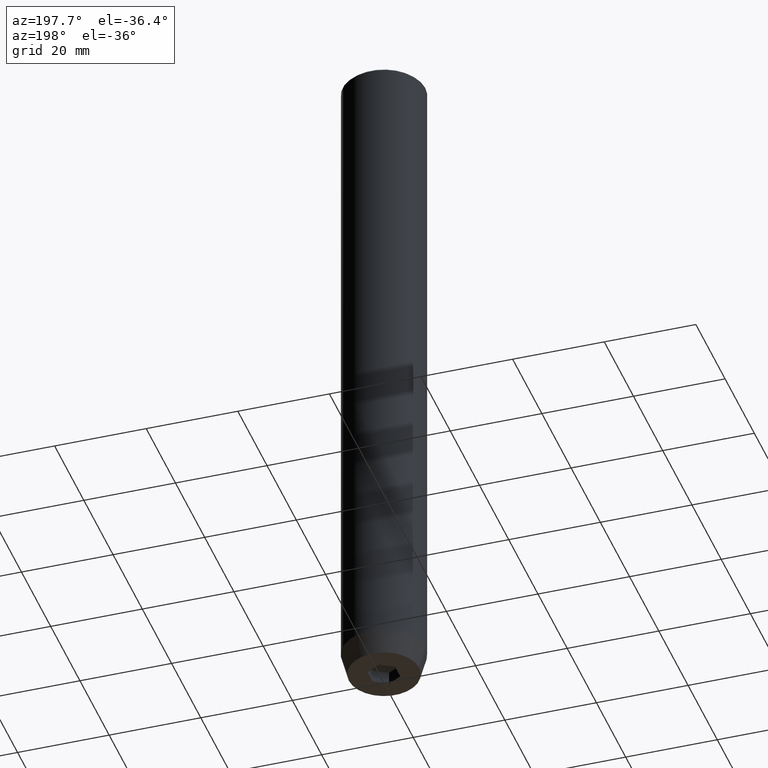
[diagram: clean part render]
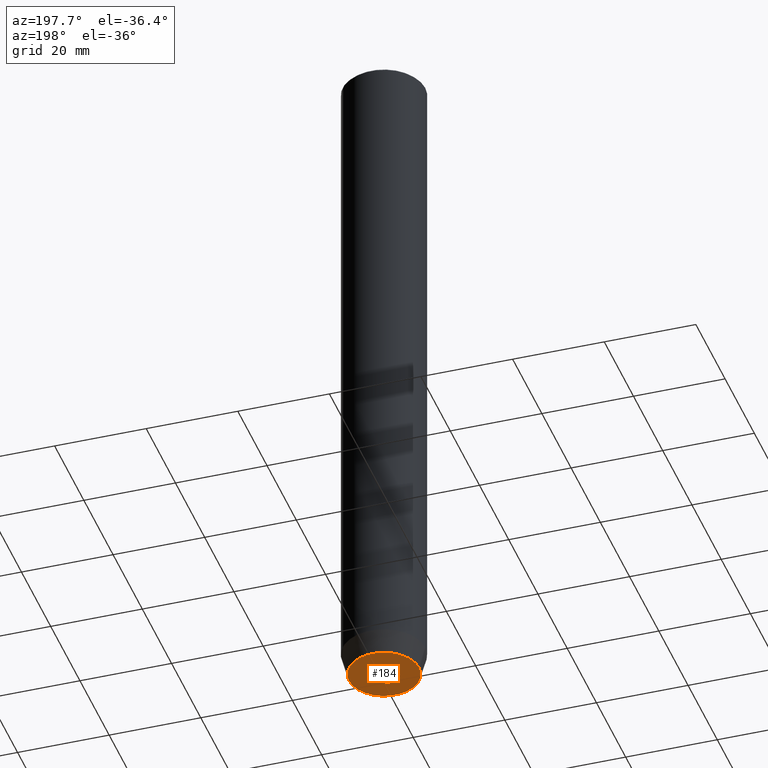
[diagram: same view with one face highlighted and labeled with its STEP entity id]
A machine part, auxiliary view. The second image highlights one B-rep face of the part: STEP entity #184.
In plain terms, the highlighted planar face has unit normal (0, 0, -1).
Its self-contained STEP definition (entity closure, byte-faithful):
#3 = CARTESIAN_POINT ( 'NONE',  ( 3.000000000000000000, 1.732050807568876527, -150.0000000000000000 ) ) ;
#7 = LINE ( 'NONE', #145, #283 ) ;
#10 = LINE ( 'NONE', #233, #101 ) ;
#11 = EDGE_CURVE ( 'NONE', #84, #215, #270, .T. ) ;
#12 = VECTOR ( 'NONE', #71, 1000.000000000000000 ) ;
#13 = PLANE ( 'NONE',  #350 ) ;
#23 = CARTESIAN_POINT ( 'NONE',  ( -3.000000000000000444, -7.511572993685800087E-16, -150.0000000000000000 ) ) ;
#29 = ORIENTED_EDGE ( 'NONE', *, *, #356, .F. ) ;
#33 = AXIS2_PLACEMENT_3D ( 'NONE', #143, #324, #390 ) ;
#36 = ORIENTED_EDGE ( 'NONE', *, *, #191, .F. ) ;
#39 = EDGE_CURVE ( 'NONE', #311, #394, #10, .T. ) ;
#40 = DIRECTION ( 'NONE',  ( -0.000000000000000000, -0.000000000000000000, 1.000000000000000000 ) ) ;
#46 = CARTESIAN_POINT ( 'NONE',  ( 0.000000000000000000, 0.000000000000000000, -150.0000000000000000 ) ) ;
#50 = VECTOR ( 'NONE', #386, 1000.000000000000000 ) ;
#71 = DIRECTION ( 'NONE',  ( -0.8660254037844385966, -0.5000000000000001110, 0.000000000000000000 ) ) ;
#81 = DIRECTION ( 'NONE',  ( -0.8660254037844385966, 0.5000000000000001110, 0.000000000000000000 ) ) ;
#84 = VERTEX_POINT ( 'NONE', #407 ) ;
#97 = FACE_OUTER_BOUND ( 'NONE', #170, .T. ) ;
#99 = CARTESIAN_POINT ( 'NONE',  ( -3.000000000000000888, 1.732050807568876527, -150.0000000000000000 ) ) ;
#101 = VECTOR ( 'NONE', #142, 1000.000000000000000 ) ;
#113 = CIRCLE ( 'NONE', #366, 7.660254037844373087 ) ;
#119 = CARTESIAN_POINT ( 'NONE',  ( -7.660254037844373087, 1.020146339021393680E-15, -150.0000000000000000 ) ) ;
#142 = DIRECTION ( 'NONE',  ( 0.8660254037844385966, -0.5000000000000001110, 0.000000000000000000 ) ) ;
#143 = CARTESIAN_POINT ( 'NONE',  ( 0.000000000000000000, 0.000000000000000000, -150.0000000000000000 ) ) ;
#145 = CARTESIAN_POINT ( 'NONE',  ( 3.000000000000000000, 0.000000000000000000, -150.0000000000000000 ) ) ;
#151 = CARTESIAN_POINT ( 'NONE',  ( 7.660254037844373087, 0.000000000000000000, -150.0000000000000000 ) ) ;
#165 = CARTESIAN_POINT ( 'NONE',  ( 3.000000000000000000, -1.732050807568876527, -150.0000000000000000 ) ) ;
#170 = EDGE_LOOP ( 'NONE', ( #562, #36 ) ) ;
#171 = CIRCLE ( 'NONE', #33, 7.660254037844373087 ) ;
#184 = ADVANCED_FACE ( 'NONE', ( #503, #97 ), #13, .T. ) ;
#191 = EDGE_CURVE ( 'NONE', #252, #294, #171, .T. ) ;
#192 = CARTESIAN_POINT ( 'NONE',  ( 0.000000000000000000, 7.660254037844373087, -150.0000000000000000 ) ) ;
#212 = EDGE_LOOP ( 'NONE', ( #29, #576, #290, #521, #541, #225 ) ) ;
#215 = VERTEX_POINT ( 'NONE', #527 ) ;
#225 = ORIENTED_EDGE ( 'NONE', *, *, #39, .F. ) ;
#226 = DIRECTION ( 'NONE',  ( 1.000000000000000000, 0.000000000000000000, 0.000000000000000000 ) ) ;
#233 = CARTESIAN_POINT ( 'NONE',  ( 1.500000000000000222, 2.598076211353315568, -150.0000000000000000 ) ) ;
#245 = EDGE_CURVE ( 'NONE', #361, #84, #515, .T. ) ;
#252 = VERTEX_POINT ( 'NONE', #119 ) ;
#265 = EDGE_CURVE ( 'NONE', #215, #579, #574, .T. ) ;
#270 = LINE ( 'NONE', #484, #480 ) ;
#274 = DIRECTION ( 'NONE',  ( 0.000000000000000000, -1.000000000000000000, 0.000000000000000000 ) ) ;
#283 = VECTOR ( 'NONE', #274, 1000.000000000000000 ) ;
#290 = ORIENTED_EDGE ( 'NONE', *, *, #11, .F. ) ;
#293 = CARTESIAN_POINT ( 'NONE',  ( 0.000000000000000000, 3.464101615137754386, -150.0000000000000000 ) ) ;
#294 = VERTEX_POINT ( 'NONE', #151 ) ;
#309 = LINE ( 'NONE', #355, #557 ) ;
#311 = VERTEX_POINT ( 'NONE', #293 ) ;
#324 = DIRECTION ( 'NONE',  ( -0.000000000000000000, -0.000000000000000000, 1.000000000000000000 ) ) ;
#350 = AXIS2_PLACEMENT_3D ( 'NONE', #192, #370, #552 ) ;
#355 = CARTESIAN_POINT ( 'NONE',  ( -1.499999999999999556, 2.598076211353316012, -150.0000000000000000 ) ) ;
#356 = EDGE_CURVE ( 'NONE', #579, #311, #309, .T. ) ;
#361 = VERTEX_POINT ( 'NONE', #165 ) ;
#366 = AXIS2_PLACEMENT_3D ( 'NONE', #46, #40, #226 ) ;
#370 = DIRECTION ( 'NONE',  ( 0.000000000000000000, 0.000000000000000000, -1.000000000000000000 ) ) ;
#386 = DIRECTION ( 'NONE',  ( -2.503857664561932376E-16, 1.000000000000000000, 0.000000000000000000 ) ) ;
#390 = DIRECTION ( 'NONE',  ( 1.000000000000000000, 0.000000000000000000, 0.000000000000000000 ) ) ;
#394 = VERTEX_POINT ( 'NONE', #3 ) ;
#407 = CARTESIAN_POINT ( 'NONE',  ( -2.168404344971008868E-16, -3.464101615137754830, -150.0000000000000000 ) ) ;
#437 = EDGE_CURVE ( 'NONE', #294, #252, #113, .T. ) ;
#480 = VECTOR ( 'NONE', #81, 1000.000000000000000 ) ;
#483 = DIRECTION ( 'NONE',  ( 0.8660254037844387076, 0.4999999999999999445, 0.000000000000000000 ) ) ;
#484 = CARTESIAN_POINT ( 'NONE',  ( -1.500000000000000666, -2.598076211353316456, -150.0000000000000000 ) ) ;
#503 = FACE_BOUND ( 'NONE', #212, .T. ) ;
#515 = LINE ( 'NONE', #519, #12 ) ;
#519 = CARTESIAN_POINT ( 'NONE',  ( 1.500000000000000222, -2.598076211353315568, -150.0000000000000000 ) ) ;
#521 = ORIENTED_EDGE ( 'NONE', *, *, #245, .F. ) ;
#527 = CARTESIAN_POINT ( 'NONE',  ( -3.000000000000000000, -1.732050807568877859, -150.0000000000000000 ) ) ;
#541 = ORIENTED_EDGE ( 'NONE', *, *, #584, .F. ) ;
#552 = DIRECTION ( 'NONE',  ( -1.000000000000000000, 0.000000000000000000, -0.000000000000000000 ) ) ;
#557 = VECTOR ( 'NONE', #483, 999.9999999999998863 ) ;
#562 = ORIENTED_EDGE ( 'NONE', *, *, #437, .F. ) ;
#574 = LINE ( 'NONE', #23, #50 ) ;
#576 = ORIENTED_EDGE ( 'NONE', *, *, #265, .F. ) ;
#579 = VERTEX_POINT ( 'NONE', #99 ) ;
#584 = EDGE_CURVE ( 'NONE', #394, #361, #7, .T. ) ;